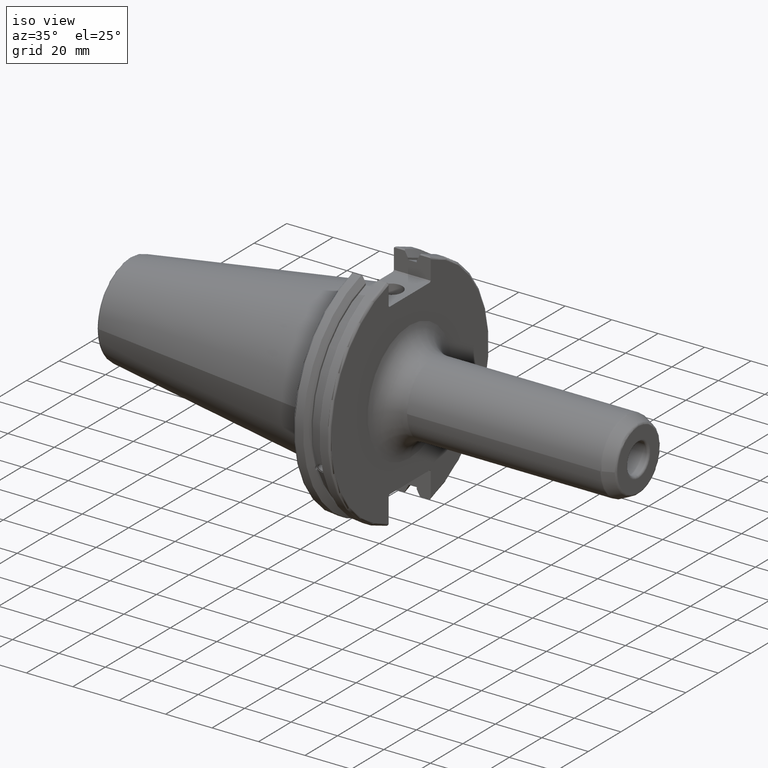
[diagram: clean part render]
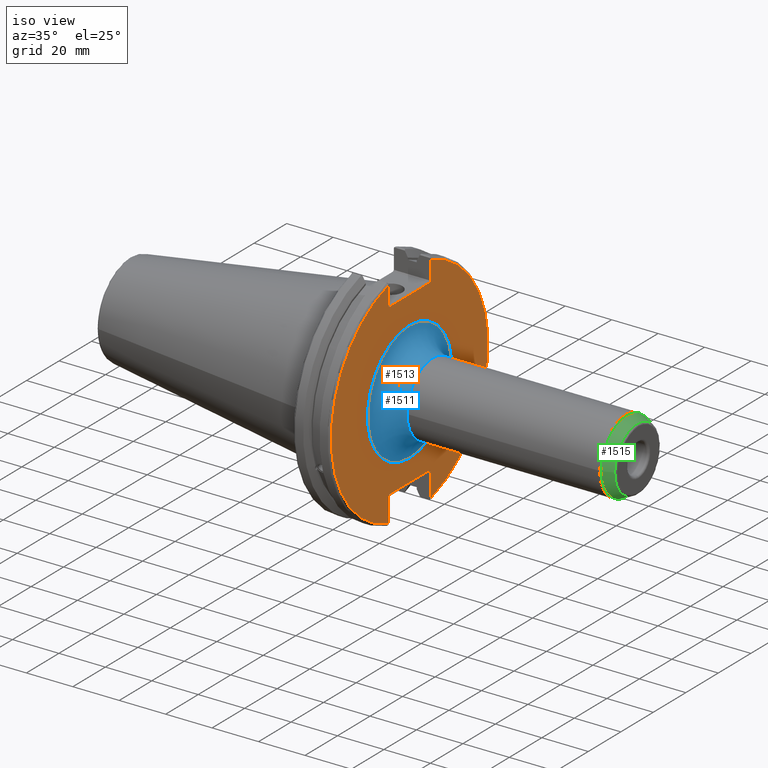
[diagram: same view with three faces highlighted in distinct colors, each labeled with its STEP entity id]
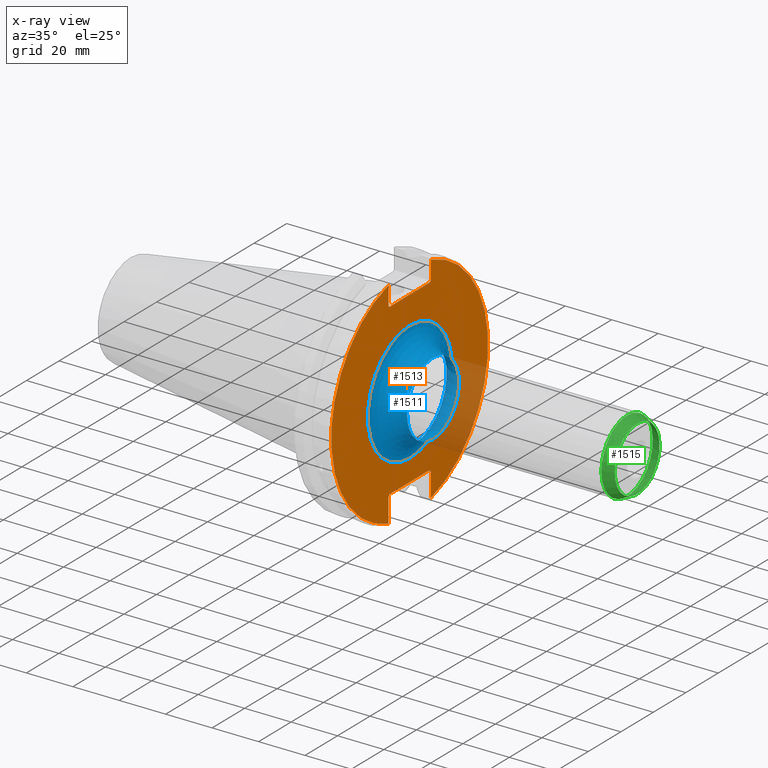
[diagram: x-ray of the same camera — body ghosted, the three highlighted faces saturated]
A machine part, iso view with three faces highlighted in distinct colors.
The next image is the same camera in x-ray (body ghosted, the three faces saturated) — at least one of them is partly hidden behind the body in this view.
Their STEP definitions:

[orange] entity #1513 — the highlighted planar face has unit normal (1, 0, 0).
#60=FACE_BOUND('',#211,.T.);
#80=PLANE('',#1632);
#120=FACE_OUTER_BOUND('',#210,.T.);
#210=EDGE_LOOP('',(#1038,#1039,#1040,#1041,#1042,#1043,#1044,#1045,#1046,
#1047,#1048,#1049));
#211=EDGE_LOOP('',(#1050));
#357=LINE('',#2338,#451);
#358=LINE('',#2340,#452);
#359=LINE('',#2342,#453);
#360=LINE('',#2344,#454);
#361=LINE('',#2346,#455);
#362=LINE('',#2350,#456);
#363=LINE('',#2352,#457);
#364=LINE('',#2354,#458);
#365=LINE('',#2356,#459);
#366=LINE('',#2357,#460);
#451=VECTOR('',#1824,10.);
#452=VECTOR('',#1825,10.);
#453=VECTOR('',#1826,10.);
#454=VECTOR('',#1827,10.);
#455=VECTOR('',#1828,10.);
#456=VECTOR('',#1831,10.);
#457=VECTOR('',#1832,10.);
#458=VECTOR('',#1833,10.);
#459=VECTOR('',#1834,10.);
#460=VECTOR('',#1835,10.);
#546=CIRCLE('',#1627,25.875);
#550=CIRCLE('',#1633,48.2125);
#551=CIRCLE('',#1634,48.2125);
#630=VERTEX_POINT('',#2323);
#633=VERTEX_POINT('',#2334);
#634=VERTEX_POINT('',#2335);
#635=VERTEX_POINT('',#2337);
#636=VERTEX_POINT('',#2339);
#637=VERTEX_POINT('',#2341);
#638=VERTEX_POINT('',#2343);
#639=VERTEX_POINT('',#2345);
#640=VERTEX_POINT('',#2347);
#641=VERTEX_POINT('',#2349);
#642=VERTEX_POINT('',#2351);
#643=VERTEX_POINT('',#2353);
#644=VERTEX_POINT('',#2355);
#789=EDGE_CURVE('',#630,#630,#546,.T.);
#794=EDGE_CURVE('',#633,#634,#550,.T.);
#795=EDGE_CURVE('',#633,#635,#357,.T.);
#796=EDGE_CURVE('',#636,#635,#358,.T.);
#797=EDGE_CURVE('',#636,#637,#359,.T.);
#798=EDGE_CURVE('',#638,#637,#360,.T.);
#799=EDGE_CURVE('',#638,#639,#361,.T.);
#800=EDGE_CURVE('',#640,#639,#551,.T.);
#801=EDGE_CURVE('',#640,#641,#362,.T.);
#802=EDGE_CURVE('',#642,#641,#363,.T.);
#803=EDGE_CURVE('',#642,#643,#364,.T.);
#804=EDGE_CURVE('',#644,#643,#365,.T.);
#805=EDGE_CURVE('',#644,#634,#366,.T.);
#1038=ORIENTED_EDGE('',*,*,#794,.F.);
#1039=ORIENTED_EDGE('',*,*,#795,.T.);
#1040=ORIENTED_EDGE('',*,*,#796,.F.);
#1041=ORIENTED_EDGE('',*,*,#797,.T.);
#1042=ORIENTED_EDGE('',*,*,#798,.F.);
#1043=ORIENTED_EDGE('',*,*,#799,.T.);
#1044=ORIENTED_EDGE('',*,*,#800,.F.);
#1045=ORIENTED_EDGE('',*,*,#801,.T.);
#1046=ORIENTED_EDGE('',*,*,#802,.F.);
#1047=ORIENTED_EDGE('',*,*,#803,.T.);
#1048=ORIENTED_EDGE('',*,*,#804,.F.);
#1049=ORIENTED_EDGE('',*,*,#805,.T.);
#1050=ORIENTED_EDGE('',*,*,#789,.F.);
#1513=ADVANCED_FACE('',(#120,#60),#80,.T.);
#1627=AXIS2_PLACEMENT_3D('',#2325,#1809,#1810);
#1632=AXIS2_PLACEMENT_3D('',#2333,#1820,#1821);
#1633=AXIS2_PLACEMENT_3D('',#2336,#1822,#1823);
#1634=AXIS2_PLACEMENT_3D('',#2348,#1829,#1830);
#1809=DIRECTION('center_axis',(1.,0.,0.));
#1810=DIRECTION('ref_axis',(0.,-1.,-1.22464679914735E-16));
#1820=DIRECTION('center_axis',(1.,0.,0.));
#1821=DIRECTION('ref_axis',(0.,0.,-1.));
#1822=DIRECTION('center_axis',(-1.,0.,0.));
#1823=DIRECTION('ref_axis',(0.,1.,-6.12323399573677E-17));
#1824=DIRECTION('',(0.,0.,-1.));
#1825=DIRECTION('',(0.,0.707106781186549,0.707106781186546));
#1826=DIRECTION('',(0.,-1.,0.));
#1827=DIRECTION('',(0.,0.707106781186549,-0.707106781186546));
#1828=DIRECTION('',(0.,0.,1.));
#1829=DIRECTION('center_axis',(-1.,0.,0.));
#1830=DIRECTION('ref_axis',(0.,-1.,1.60812264967664E-16));
#1831=DIRECTION('',(0.,0.,1.));
#1832=DIRECTION('',(0.,-0.707106781186549,-0.707106781186546));
#1833=DIRECTION('',(0.,1.,0.));
#1834=DIRECTION('',(0.,-0.707106781186549,0.707106781186546));
#1835=DIRECTION('',(0.,0.,-1.));
#2323=CARTESIAN_POINT('',(19.05,-3.16877359279378E-15,-25.875));
#2325=CARTESIAN_POINT('Origin',(19.05,0.,0.));
#2333=CARTESIAN_POINT('Origin',(19.05,0.,0.));
#2334=CARTESIAN_POINT('',(19.05,12.95,46.4407434937254));
#2335=CARTESIAN_POINT('',(19.05,12.95,-46.4407434937254));
#2336=CARTESIAN_POINT('Origin',(19.05,0.,0.));
#2337=CARTESIAN_POINT('',(19.05,12.95,38.219));
#2338=CARTESIAN_POINT('',(19.05,12.95,18.8595));
#2339=CARTESIAN_POINT('',(19.05,12.45,37.719));
#2340=CARTESIAN_POINT('',(19.05,0.0327499999999836,25.30175));
#2341=CARTESIAN_POINT('',(19.05,-12.45,37.719));
#2342=CARTESIAN_POINT('',(19.05,0.,37.719));
#2343=CARTESIAN_POINT('',(19.05,-12.95,38.219));
#2344=CARTESIAN_POINT('',(19.05,-0.0327499999999817,25.30175));
#2345=CARTESIAN_POINT('',(19.05,-12.95,46.4407434937254));
#2346=CARTESIAN_POINT('',(19.05,-12.95,18.8595));
#2347=CARTESIAN_POINT('',(19.05,-12.95,-46.4407434937254));
#2348=CARTESIAN_POINT('Origin',(19.05,0.,0.));
#2349=CARTESIAN_POINT('',(19.05,-12.95,-35.806));
#2350=CARTESIAN_POINT('',(19.05,-12.95,-17.653));
#2351=CARTESIAN_POINT('',(19.05,-12.45,-35.306));
#2352=CARTESIAN_POINT('',(19.05,-0.635999999999989,-23.492));
#2353=CARTESIAN_POINT('',(19.05,12.45,-35.306));
#2354=CARTESIAN_POINT('',(19.05,-3.33066907387547E-15,-35.306));
#2355=CARTESIAN_POINT('',(19.05,12.95,-35.806));
#2356=CARTESIAN_POINT('',(19.05,0.635999999999982,-23.492));
#2357=CARTESIAN_POINT('',(19.05,12.95,-17.653));

[blue] entity #1511 — the highlighted toroidal blend (fillet) surface has major radius 25.875 mm and minor (blend) radius 10 mm.
#33=TOROIDAL_SURFACE('',#1624,25.875,10.);
#118=FACE_OUTER_BOUND('',#207,.T.);
#207=EDGE_LOOP('',(#1025,#1026,#1027,#1028,#1029));
#544=CIRCLE('',#1625,15.875);
#545=CIRCLE('',#1626,10.);
#546=CIRCLE('',#1627,25.875);
#547=CIRCLE('',#1628,15.875);
#628=VERTEX_POINT('',#2320);
#629=VERTEX_POINT('',#2321);
#630=VERTEX_POINT('',#2323);
#787=EDGE_CURVE('',#628,#629,#544,.T.);
#788=EDGE_CURVE('',#629,#630,#545,.T.);
#789=EDGE_CURVE('',#630,#630,#546,.T.);
#790=EDGE_CURVE('',#629,#628,#547,.T.);
#1025=ORIENTED_EDGE('',*,*,#787,.T.);
#1026=ORIENTED_EDGE('',*,*,#788,.T.);
#1027=ORIENTED_EDGE('',*,*,#789,.T.);
#1028=ORIENTED_EDGE('',*,*,#788,.F.);
#1029=ORIENTED_EDGE('',*,*,#790,.T.);
#1511=ADVANCED_FACE('',(#118),#33,.F.);
#1624=AXIS2_PLACEMENT_3D('',#2319,#1803,#1804);
#1625=AXIS2_PLACEMENT_3D('',#2322,#1805,#1806);
#1626=AXIS2_PLACEMENT_3D('',#2324,#1807,#1808);
#1627=AXIS2_PLACEMENT_3D('',#2325,#1809,#1810);
#1628=AXIS2_PLACEMENT_3D('',#2326,#1811,#1812);
#1803=DIRECTION('center_axis',(-1.,0.,0.));
#1804=DIRECTION('ref_axis',(0.,0.,1.));
#1805=DIRECTION('center_axis',(-1.,0.,0.));
#1806=DIRECTION('ref_axis',(0.,-1.,-1.22464679914735E-16));
#1807=DIRECTION('center_axis',(0.,-1.,1.22464679914735E-16));
#1808=DIRECTION('ref_axis',(0.,-1.22464679914735E-16,-1.));
#1809=DIRECTION('center_axis',(1.,0.,0.));
#1810=DIRECTION('ref_axis',(0.,-1.,-1.22464679914735E-16));
#1811=DIRECTION('center_axis',(-1.,0.,0.));
#1812=DIRECTION('ref_axis',(0.,-1.,-1.22464679914735E-16));
#2319=CARTESIAN_POINT('Origin',(29.05,0.,0.));
#2320=CARTESIAN_POINT('',(29.05,-15.875,-1.94412679364642E-15));
#2321=CARTESIAN_POINT('',(29.05,-1.94412679364642E-15,-15.875));
#2322=CARTESIAN_POINT('Origin',(29.05,0.,0.));
#2323=CARTESIAN_POINT('',(19.05,-3.16877359279378E-15,-25.875));
#2324=CARTESIAN_POINT('Origin',(29.05,-3.16877359279378E-15,-25.875));
#2325=CARTESIAN_POINT('Origin',(19.05,0.,0.));
#2326=CARTESIAN_POINT('Origin',(29.05,0.,0.));

[green] entity #1515 — the highlighted conical surface has half-angle 25 deg.
#44=CONICAL_SURFACE('',#1639,14.6875,0.436332312998582);
#122=FACE_OUTER_BOUND('',#213,.T.);
#213=EDGE_LOOP('',(#1057,#1058,#1059,#1060,#1061,#1062));
#367=LINE('',#2368,#461);
#461=VECTOR('',#1848,14.6875);
#552=CIRCLE('',#1636,15.7813077870367);
#553=CIRCLE('',#1637,15.7813077870367);
#555=CIRCLE('',#1640,13.7692375262292);
#556=CIRCLE('',#1641,13.7692375262292);
#645=VERTEX_POINT('',#2359);
#646=VERTEX_POINT('',#2360);
#647=VERTEX_POINT('',#2365);
#648=VERTEX_POINT('',#2366);
#806=EDGE_CURVE('',#645,#646,#552,.T.);
#807=EDGE_CURVE('',#646,#645,#553,.T.);
#809=EDGE_CURVE('',#647,#648,#555,.T.);
#810=EDGE_CURVE('',#647,#646,#367,.T.);
#811=EDGE_CURVE('',#648,#647,#556,.T.);
#1057=ORIENTED_EDGE('',*,*,#809,.F.);
#1058=ORIENTED_EDGE('',*,*,#810,.T.);
#1059=ORIENTED_EDGE('',*,*,#806,.F.);
#1060=ORIENTED_EDGE('',*,*,#807,.F.);
#1061=ORIENTED_EDGE('',*,*,#810,.F.);
#1062=ORIENTED_EDGE('',*,*,#811,.F.);
#1515=ADVANCED_FACE('',(#122),#44,.T.);
#1636=AXIS2_PLACEMENT_3D('',#2361,#1838,#1839);
#1637=AXIS2_PLACEMENT_3D('',#2362,#1840,#1841);
#1639=AXIS2_PLACEMENT_3D('',#2364,#1844,#1845);
#1640=AXIS2_PLACEMENT_3D('',#2367,#1846,#1847);
#1641=AXIS2_PLACEMENT_3D('',#2369,#1849,#1850);
#1838=DIRECTION('center_axis',(-1.,0.,0.));
#1839=DIRECTION('ref_axis',(0.,-1.,3.06161699786838E-17));
#1840=DIRECTION('center_axis',(-1.,0.,0.));
#1841=DIRECTION('ref_axis',(0.,-1.,3.06161699786838E-17));
#1844=DIRECTION('center_axis',(-1.,0.,0.));
#1845=DIRECTION('ref_axis',(0.,1.,0.));
#1846=DIRECTION('center_axis',(1.,0.,0.));
#1847=DIRECTION('ref_axis',(0.,-1.,3.06161699786838E-17));
#1848=DIRECTION('',(-0.90630778703665,-0.422618261740699,-5.17558101501966E-17));
#1849=DIRECTION('center_axis',(1.,0.,0.));
#1850=DIRECTION('ref_axis',(0.,-1.,3.06161699786838E-17));
#2359=CARTESIAN_POINT('',(112.707719662888,-1.93265280677536E-15,15.7813077870367));
#2360=CARTESIAN_POINT('',(112.707719662888,-15.7813077870367,-1.93265280677536E-15));
#2361=CARTESIAN_POINT('Origin',(112.707719662888,0.,-2.4158160084692E-15));
#2362=CARTESIAN_POINT('Origin',(112.707719662888,0.,-2.4158160084692E-15));
#2364=CARTESIAN_POINT('Origin',(115.053398031895,0.,0.));
#2365=CARTESIAN_POINT('',(117.022618261741,-13.7692375262292,-1.68624526631962E-15));
#2366=CARTESIAN_POINT('',(117.022618261741,-1.68624526631962E-15,13.7692375262292));
#2367=CARTESIAN_POINT('Origin',(117.022618261741,0.,-2.10780658289952E-15));
#2368=CARTESIAN_POINT('',(115.053398031895,-14.6875,-1.79869998624767E-15));
#2369=CARTESIAN_POINT('Origin',(117.022618261741,0.,-2.10780658289952E-15));